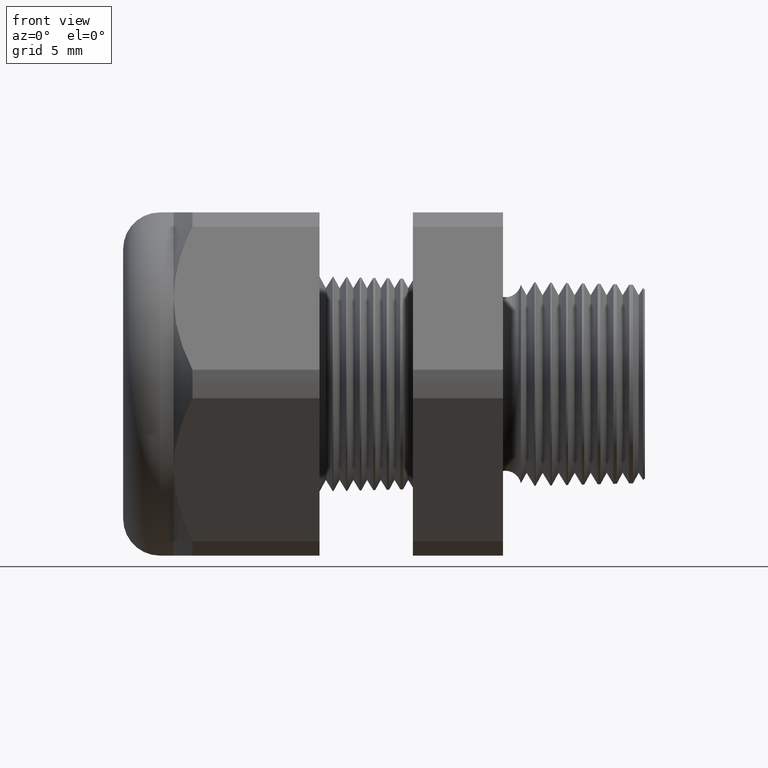
[diagram: clean part render]
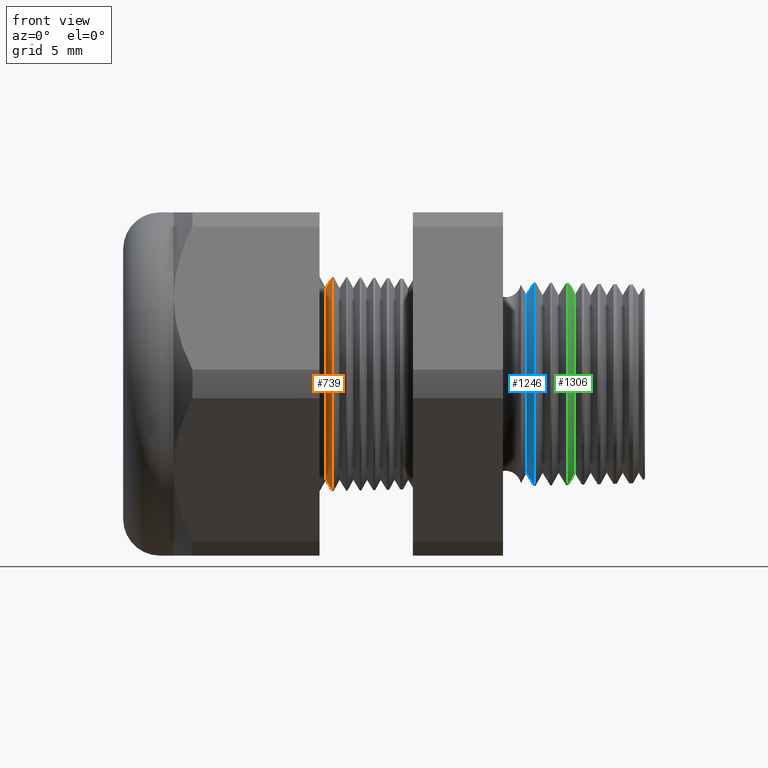
[diagram: same view with three faces highlighted in distinct colors, each labeled with its STEP entity id]
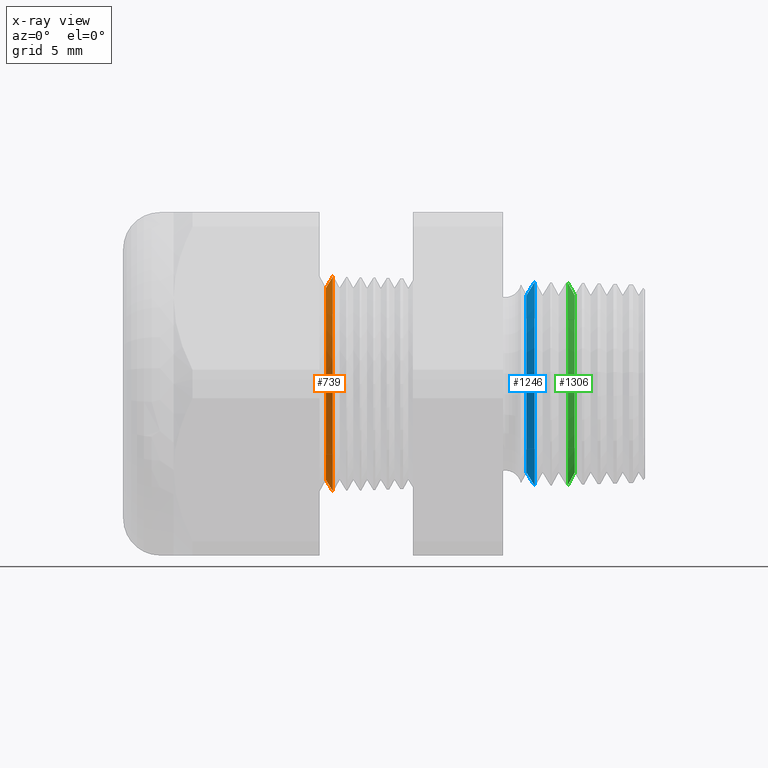
[diagram: x-ray of the same camera — body ghosted, the three highlighted faces saturated]
A machine part, front view with three faces highlighted in distinct colors.
The next image is the same camera in x-ray (body ghosted, the three faces saturated) — at least one of them is partly hidden behind the body in this view.
Their STEP definitions:

[orange] entity #739 — the highlighted conical surface has half-angle 58.5 deg.
#462 = VERTEX_POINT ( 'NONE', #2244 ) ;
#464 = EDGE_CURVE ( 'NONE', #462, #465, #2243, .T. ) ;
#465 = VERTEX_POINT ( 'NONE', #2239 ) ;
#468 = VERTEX_POINT ( 'NONE', #2295 ) ;
#470 = EDGE_CURVE ( 'NONE', #521, #468, #2294, .T. ) ;
#521 = VERTEX_POINT ( 'NONE', #2383 ) ;
#688 = EDGE_CURVE ( 'NONE', #462, #521, #2639, .T. ) ;
#690 = EDGE_LOOP ( 'NONE', ( #740, #742, #743, #744 ) ) ;
#739 = ADVANCED_FACE ( 'NONE', ( #2709 ), #2708, .T. ) ;
#740 = ORIENTED_EDGE ( 'NONE', *, *, #464, .F. ) ;
#742 = ORIENTED_EDGE ( 'NONE', *, *, #688, .T. ) ;
#743 = ORIENTED_EDGE ( 'NONE', *, *, #470, .T. ) ;
#744 = ORIENTED_EDGE ( 'NONE', *, *, #950, .F. ) ;
#950 = EDGE_CURVE ( 'NONE', #465, #468, #3065, .T. ) ;
#2239 = CARTESIAN_POINT ( 'NONE',  ( -0.6820085204486827600, 0.0000000000000000000, 0.2342443365923944900 ) ) ;
#2240 = DIRECTION ( 'NONE',  ( 0.5224985647159303700, 1.044183048100726200E-016, 0.8526401643541036100 ) ) ;
#2241 = VECTOR ( 'NONE', #2240, 39.37007874015748100 ) ;
#2242 = CARTESIAN_POINT ( 'NONE',  ( -0.6970917547981794200, 2.567236088310615500E-017, 0.2096307351718083000 ) ) ;
#2243 = LINE ( 'NONE', #2242, #2241 ) ;
#2244 = CARTESIAN_POINT ( 'NONE',  ( -0.6970917547981794200, 0.0000000000000000000, 0.2096307351718083000 ) ) ;
#2291 = DIRECTION ( 'NONE',  ( 0.5224985647159303700, 0.0000000000000000000, -0.8526401643541036100 ) ) ;
#2292 = VECTOR ( 'NONE', #2291, 39.37007874015748100 ) ;
#2293 = CARTESIAN_POINT ( 'NONE',  ( -0.6970917547981794200, 0.0000000000000000000, -0.2096307351718083000 ) ) ;
#2294 = LINE ( 'NONE', #2293, #2292 ) ;
#2295 = CARTESIAN_POINT ( 'NONE',  ( -0.6820085204486827600, 2.868665770262710900E-017, -0.2342443365923944900 ) ) ;
#2383 = CARTESIAN_POINT ( 'NONE',  ( -0.6970917547981794200, 2.722578033153447600E-017, -0.2096307351718083000 ) ) ;
#2631 = DIRECTION ( 'NONE',  ( 0.0000000000000000000, 0.0000000000000000000, -1.000000000000000000 ) ) ;
#2632 = DIRECTION ( 'NONE',  ( 1.000000000000000000, 0.0000000000000000000, 0.0000000000000000000 ) ) ;
#2633 = CARTESIAN_POINT ( 'NONE',  ( -0.6970917547981794200, 0.0000000000000000000, 0.0000000000000000000 ) ) ;
#2634 = AXIS2_PLACEMENT_3D ( 'NONE', #2633, #2632, #2631 ) ;
#2639 = CIRCLE ( 'NONE', #2634, 0.2096307351718083000 ) ;
#2704 = DIRECTION ( 'NONE',  ( 0.0000000000000000000, 0.0000000000000000000, -1.000000000000000000 ) ) ;
#2705 = DIRECTION ( 'NONE',  ( 1.000000000000000000, 0.0000000000000000000, 0.0000000000000000000 ) ) ;
#2706 = AXIS2_PLACEMENT_3D ( 'NONE', #2715, #2705, #2704 ) ;
#2708 = CONICAL_SURFACE ( 'NONE', #2706, 0.2096307351718083000, 1.021017612416704500 ) ;
#2709 = FACE_OUTER_BOUND ( 'NONE', #690, .T. ) ;
#2715 = CARTESIAN_POINT ( 'NONE',  ( -0.6970917547981794200, 0.0000000000000000000, 0.0000000000000000000 ) ) ;
#3061 = DIRECTION ( 'NONE',  ( 0.0000000000000000000, 0.0000000000000000000, -1.000000000000000000 ) ) ;
#3062 = DIRECTION ( 'NONE',  ( 1.000000000000000000, 0.0000000000000000000, 0.0000000000000000000 ) ) ;
#3063 = CARTESIAN_POINT ( 'NONE',  ( -0.6820085204486827600, 0.0000000000000000000, 0.0000000000000000000 ) ) ;
#3064 = AXIS2_PLACEMENT_3D ( 'NONE', #3063, #3062, #3061 ) ;
#3065 = CIRCLE ( 'NONE', #3064, 0.2342443365923945500 ) ;

[blue] entity #1246 — the highlighted conical surface has half-angle 58.5 deg.
#271 = EDGE_CURVE ( 'NONE', #288, #272, #1860, .T. ) ;
#272 = VERTEX_POINT ( 'NONE', #1920 ) ;
#274 = VERTEX_POINT ( 'NONE', #1919 ) ;
#287 = VERTEX_POINT ( 'NONE', #1953 ) ;
#288 = VERTEX_POINT ( 'NONE', #1952 ) ;
#343 = EDGE_CURVE ( 'NONE', #287, #274, #2026, .T. ) ;
#855 = EDGE_CURVE ( 'NONE', #274, #272, #2886, .T. ) ;
#1246 = ADVANCED_FACE ( 'NONE', ( #3623 ), #3622, .T. ) ;
#1247 = EDGE_LOOP ( 'NONE', ( #1248, #1249, #1250, #1251 ) ) ;
#1248 = ORIENTED_EDGE ( 'NONE', *, *, #271, .F. ) ;
#1249 = ORIENTED_EDGE ( 'NONE', *, *, #1266, .T. ) ;
#1250 = ORIENTED_EDGE ( 'NONE', *, *, #343, .T. ) ;
#1251 = ORIENTED_EDGE ( 'NONE', *, *, #855, .T. ) ;
#1266 = EDGE_CURVE ( 'NONE', #288, #287, #3662, .T. ) ;
#1858 = DIRECTION ( 'NONE',  ( 0.5224985647159347000, 1.044183048100722800E-016, 0.8526401643541008400 ) ) ;
#1859 = CARTESIAN_POINT ( 'NONE',  ( -0.2584707356790751900, 2.376547531538798900E-017, 0.1940598328590287200 ) ) ;
#1860 = LINE ( 'NONE', #1859, #1921 ) ;
#1919 = CARTESIAN_POINT ( 'NONE',  ( -0.2409236207239148200, 2.727216436997231100E-017, -0.2226941220028522400 ) ) ;
#1920 = CARTESIAN_POINT ( 'NONE',  ( -0.2409236207239148200, 0.0000000000000000000, 0.2226941220028522400 ) ) ;
#1921 = VECTOR ( 'NONE', #1858, 39.37007874015748100 ) ;
#1952 = CARTESIAN_POINT ( 'NONE',  ( -0.2584707356790751900, 0.0000000000000000000, 0.1940598328590287200 ) ) ;
#1953 = CARTESIAN_POINT ( 'NONE',  ( -0.2584707356790751900, 2.516114149469588900E-017, -0.1940598328590287200 ) ) ;
#2023 = DIRECTION ( 'NONE',  ( 0.5224985647159347000, 0.0000000000000000000, -0.8526401643541008400 ) ) ;
#2024 = VECTOR ( 'NONE', #2023, 39.37007874015748100 ) ;
#2025 = CARTESIAN_POINT ( 'NONE',  ( -0.2584707356790751900, 0.0000000000000000000, -0.1940598328590287200 ) ) ;
#2026 = LINE ( 'NONE', #2025, #2024 ) ;
#2882 = DIRECTION ( 'NONE',  ( 0.0000000000000000000, 0.0000000000000000000, -1.000000000000000000 ) ) ;
#2883 = DIRECTION ( 'NONE',  ( -1.000000000000000000, 0.0000000000000000000, 0.0000000000000000000 ) ) ;
#2884 = CARTESIAN_POINT ( 'NONE',  ( -0.2409236207239148200, 0.0000000000000000000, 0.0000000000000000000 ) ) ;
#2885 = AXIS2_PLACEMENT_3D ( 'NONE', #2884, #2883, #2882 ) ;
#2886 = CIRCLE ( 'NONE', #2885, 0.2226941220028521900 ) ;
#3618 = DIRECTION ( 'NONE',  ( 0.0000000000000000000, 0.0000000000000000000, -1.000000000000000000 ) ) ;
#3619 = DIRECTION ( 'NONE',  ( 1.000000000000000000, 0.0000000000000000000, 0.0000000000000000000 ) ) ;
#3620 = AXIS2_PLACEMENT_3D ( 'NONE', #3627, #3619, #3618 ) ;
#3622 = CONICAL_SURFACE ( 'NONE', #3620, 0.1940598328590287200, 1.021017612416699400 ) ;
#3623 = FACE_OUTER_BOUND ( 'NONE', #1247, .T. ) ;
#3627 = CARTESIAN_POINT ( 'NONE',  ( -0.2584707356790751900, 0.0000000000000000000, 0.0000000000000000000 ) ) ;
#3659 = DIRECTION ( 'NONE',  ( 0.0000000000000000000, 0.0000000000000000000, -1.000000000000000000 ) ) ;
#3660 = DIRECTION ( 'NONE',  ( 1.000000000000000000, 0.0000000000000000000, 0.0000000000000000000 ) ) ;
#3661 = AXIS2_PLACEMENT_3D ( 'NONE', #3666, #3660, #3659 ) ;
#3662 = CIRCLE ( 'NONE', #3661, 0.1940598328590287200 ) ;
#3666 = CARTESIAN_POINT ( 'NONE',  ( -0.2584707356790751900, 0.0000000000000000000, 0.0000000000000000000 ) ) ;

[green] entity #1306 — the highlighted conical surface has half-angle 61.5 deg.
#68 = VERTEX_POINT ( 'NONE', #1497 ) ;
#72 = EDGE_CURVE ( 'NONE', #158, #68, #1496, .T. ) ;
#157 = VERTEX_POINT ( 'NONE', #1645 ) ;
#158 = VERTEX_POINT ( 'NONE', #1644 ) ;
#224 = EDGE_CURVE ( 'NONE', #157, #225, #1763, .T. ) ;
#225 = VERTEX_POINT ( 'NONE', #1818 ) ;
#861 = EDGE_CURVE ( 'NONE', #68, #225, #2874, .T. ) ;
#1285 = ORIENTED_EDGE ( 'NONE', *, *, #224, .F. ) ;
#1286 = ORIENTED_EDGE ( 'NONE', *, *, #1287, .F. ) ;
#1287 = EDGE_CURVE ( 'NONE', #158, #157, #3703, .T. ) ;
#1288 = ORIENTED_EDGE ( 'NONE', *, *, #72, .T. ) ;
#1289 = ORIENTED_EDGE ( 'NONE', *, *, #861, .T. ) ;
#1306 = ADVANCED_FACE ( 'NONE', ( #3681 ), #3740, .T. ) ;
#1307 = EDGE_LOOP ( 'NONE', ( #1285, #1286, #1288, #1289 ) ) ;
#1488 = DIRECTION ( 'NONE',  ( -0.4771587602596195100, 0.0000000000000000000, 0.8788171126619593900 ) ) ;
#1489 = VECTOR ( 'NONE', #1488, 39.37007874015748100 ) ;
#1490 = CARTESIAN_POINT ( 'NONE',  ( -0.1699999999999999600, 0.0000000000000000000, 0.2245029506528586900 ) ) ;
#1496 = LINE ( 'NONE', #1490, #1489 ) ;
#1497 = CARTESIAN_POINT ( 'NONE',  ( -0.1679808000774190800, 0.0000000000000000000, 0.2207840470223683400 ) ) ;
#1644 = CARTESIAN_POINT ( 'NONE',  ( -0.1534707356790751800, 0.0000000000000000000, 0.1940598328590287200 ) ) ;
#1645 = CARTESIAN_POINT ( 'NONE',  ( -0.1534707356790751800, 2.540186148213109900E-017, -0.1940598328590287200 ) ) ;
#1763 = LINE ( 'NONE', #1821, #1820 ) ;
#1818 = CARTESIAN_POINT ( 'NONE',  ( -0.1679808000774190800, 2.704473888058243300E-017, -0.2207840470223683400 ) ) ;
#1819 = DIRECTION ( 'NONE',  ( -0.4771587602596195100, 1.076240564057387400E-016, -0.8788171126619593900 ) ) ;
#1820 = VECTOR ( 'NONE', #1819, 39.37007874015748100 ) ;
#1821 = CARTESIAN_POINT ( 'NONE',  ( -0.1699999999999999600, 2.749368199161595500E-017, -0.2245029506528586900 ) ) ;
#2874 = CIRCLE ( 'NONE', #2933, 0.2207840470223683400 ) ;
#2930 = DIRECTION ( 'NONE',  ( 0.0000000000000000000, 0.0000000000000000000, 1.000000000000000000 ) ) ;
#2931 = DIRECTION ( 'NONE',  ( 1.000000000000000000, 0.0000000000000000000, 0.0000000000000000000 ) ) ;
#2932 = CARTESIAN_POINT ( 'NONE',  ( -0.1679808000774190800, 0.0000000000000000000, 0.0000000000000000000 ) ) ;
#2933 = AXIS2_PLACEMENT_3D ( 'NONE', #2932, #2931, #2930 ) ;
#3676 = CARTESIAN_POINT ( 'NONE',  ( -0.1699999999999999600, 0.0000000000000000000, 0.0000000000000000000 ) ) ;
#3681 = FACE_OUTER_BOUND ( 'NONE', #1307, .T. ) ;
#3695 = DIRECTION ( 'NONE',  ( 0.0000000000000000000, 0.0000000000000000000, -1.000000000000000000 ) ) ;
#3696 = DIRECTION ( 'NONE',  ( 1.000000000000000000, 0.0000000000000000000, 0.0000000000000000000 ) ) ;
#3697 = CARTESIAN_POINT ( 'NONE',  ( -0.1534707356790751800, 0.0000000000000000000, 0.0000000000000000000 ) ) ;
#3698 = AXIS2_PLACEMENT_3D ( 'NONE', #3697, #3696, #3695 ) ;
#3703 = CIRCLE ( 'NONE', #3698, 0.1940598328590287200 ) ;
#3736 = DIRECTION ( 'NONE',  ( 0.0000000000000000000, 0.0000000000000000000, 1.000000000000000000 ) ) ;
#3737 = DIRECTION ( 'NONE',  ( -1.000000000000000000, 0.0000000000000000000, 0.0000000000000000000 ) ) ;
#3738 = AXIS2_PLACEMENT_3D ( 'NONE', #3676, #3737, #3736 ) ;
#3740 = CONICAL_SURFACE ( 'NONE', #3738, 0.2245029506528586900, 1.073377489976500100 ) ;